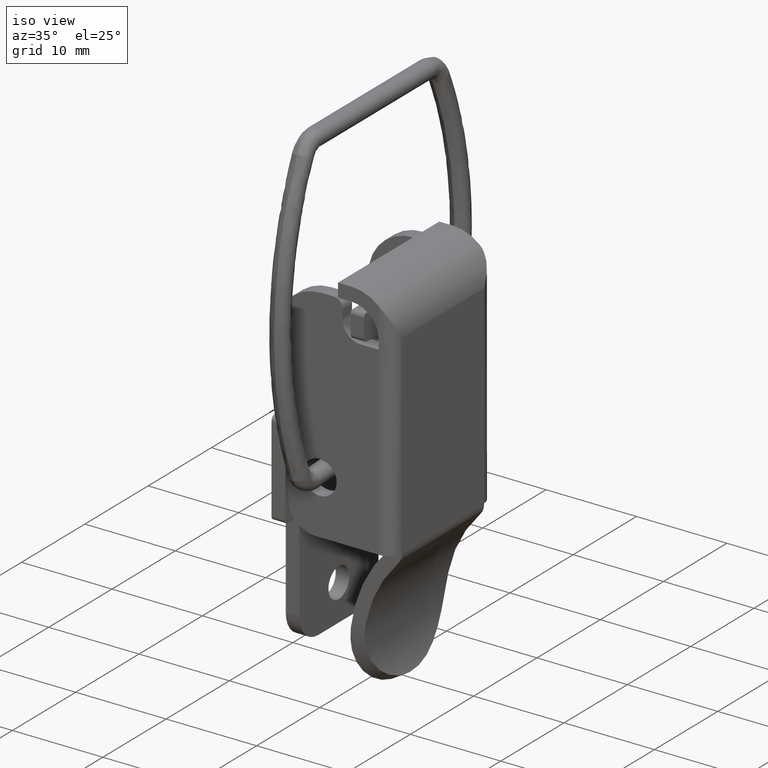
[diagram: clean part render]
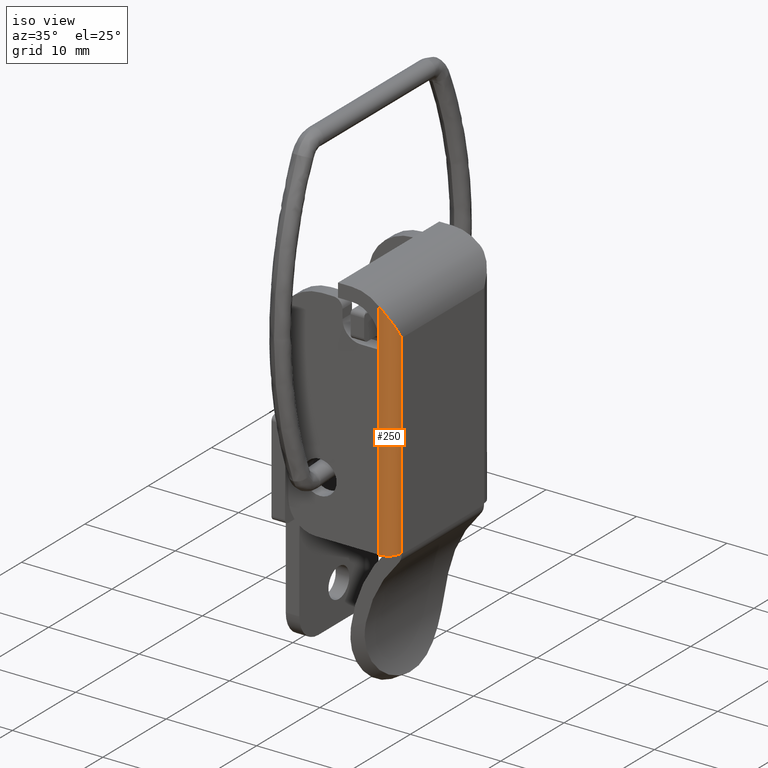
[diagram: same view with one face highlighted and labeled with its STEP entity id]
A machine part, iso view. The second image highlights one B-rep face of the part: STEP entity #250.
In plain terms, the highlighted cylindrical surface (edge-blend (fillet) strip) has radius 1.5 mm, axis along (0, 0, 1).
Its self-contained STEP definition (entity closure, byte-faithful):
#250=ADVANCED_FACE('',(#1278),#1277,.T.);
#1277=CYLINDRICAL_SURFACE('',#2055,1.50000000000E+00);
#1278=FACE_OUTER_BOUND('',#2056,.T.);
#2052=CARTESIAN_POINT('',(6.50000000000E+00,1.50000000000E+00,0.00000000000E+00));
#2053=DIRECTION('',(-0.00000000000E+00,-0.00000000000E+00,1.00000000000E+00));
#2054=DIRECTION('',(1.00000000000E+00,-0.00000000000E+00,-0.00000000000E+00));
#2055=AXIS2_PLACEMENT_3D('',#2052,#2053,#2054);
#2056=EDGE_LOOP('',(#2645,#2646,#2647,#2648,#2649,#2650));
#2645=ORIENTED_EDGE('',*,*,#2976,.F.);
#2646=ORIENTED_EDGE('',*,*,#2857,.F.);
#2647=ORIENTED_EDGE('',*,*,#2852,.F.);
#2648=ORIENTED_EDGE('',*,*,#2971,.F.);
#2649=ORIENTED_EDGE('',*,*,#2950,.T.);
#2650=ORIENTED_EDGE('',*,*,#2966,.F.);
#2852=EDGE_CURVE('',#4072,#4080,#4081,.T.);
#2857=EDGE_CURVE('',#4080,#4114,#4115,.T.);
#2950=EDGE_CURVE('',#4735,#4703,#4736,.T.);
#2966=EDGE_CURVE('',#4834,#4703,#4841,.T.);
#2971=EDGE_CURVE('',#4735,#4072,#4874,.T.);
#2976=EDGE_CURVE('',#4114,#4834,#4907,.T.);
#4072=VERTEX_POINT('',#5613);
#4080=VERTEX_POINT('',#5619);
#4081=(BOUNDED_CURVE() B_SPLINE_CURVE(3,(#5620,#5621,#5622,#5623,#5624,#5625,#5626,#5627,#5628,#5629,#5630,#5631),.UNSPECIFIED.,.F.,.F.) B_SPLINE_CURVE_WITH_KNOTS((4,2,2,2,2,4),(7.17147679171E-20,5.15321567823E-04,1.03064313565E-03,2.06128627129E-03,3.09192940694E-03,4.12257254258E-03),.UNSPECIFIED.) CURVE() GEOMETRIC_REPRESENTATION_ITEM() RATIONAL_B_SPLINE_CURVE((1.00000000000E+00,1.00000000000E+00,1.00000000000E+00,1.00000000000E+00,1.00000000000E+00,1.00000000000E+00,1.00000000000E+00,1.00000000000E+00,1.00000000000E+00,1.00000000000E+00,1.00000000000E+00,1.00000000000E+00)) REPRESENTATION_ITEM('') );
#4114=VERTEX_POINT('',#5657);
#4115=LINE('',#5658,#5659);
#4703=VERTEX_POINT('',#6097);
#4735=VERTEX_POINT('',#6116);
#4736=LINE('',#6117,#6118);
#4834=VERTEX_POINT('',#6172);
#4841=LINE('',#6176,#6177);
#4874=LINE('',#6198,#6199);
#4907=CIRCLE('',#6222,1.50000000000E+00);
#5613=CARTESIAN_POINT('',(6.50000000000E+00,0.00000000000E+00,1.88541019662E+01));
#5619=CARTESIAN_POINT('',(8.00000000000E+00,1.50000000000E+00,1.55000000000E+01));
#5620=CARTESIAN_POINT('',(6.50000000000E+00,0.00000000000E+00,1.88541019662E+01));
#5621=CARTESIAN_POINT('',(6.62943766764E+00,0.00000000000E+00,1.87383293968E+01));
#5622=CARTESIAN_POINT('',(6.75008486497E+00,1.64357694933E-02,1.86170089949E+01));
#5623=CARTESIAN_POINT('',(6.97560661925E+00,7.26585519032E-02,1.83633817999E+01));
#5624=CARTESIAN_POINT('',(7.08081155720E+00,1.12926329430E-01,1.82303645293E+01));
#5625=CARTESIAN_POINT('',(7.36571312913E+00,2.56696936258E-01,1.78269442379E+01));
#5626=CARTESIAN_POINT('',(7.51931379178E+00,3.83437061872E-01,1.75477735651E+01));
#5627=CARTESIAN_POINT('',(7.76440905076E+00,6.71155531311E-01,1.69707397386E+01));
#5628=CARTESIAN_POINT('',(7.85244227595E+00,8.28270796595E-01,1.66812697471E+01));
#5629=CARTESIAN_POINT('',(7.97035815395E+00,1.15595475357E+00,1.60958606854E+01));
#5630=CARTESIAN_POINT('',(8.00000000000E+00,1.32822625141E+00,1.57975213558E+01));
#5631=CARTESIAN_POINT('',(8.00000000000E+00,1.50000000000E+00,1.55000000000E+01));
#5657=CARTESIAN_POINT('',(8.00000000000E+00,1.50000000000E+00,-6.00000000000E+00));
#5658=CARTESIAN_POINT('',(8.00000000000E+00,1.50000000000E+00,1.55000000000E+01));
#5659=VECTOR('',#5660,2.15000000000E+01);
#5660=DIRECTION('',(0.00000000000E+00,0.00000000000E+00,-1.00000000000E+00));
#6097=CARTESIAN_POINT('',(6.50000000000E+00,0.00000000000E+00,1.45005869984E+01));
#6116=CARTESIAN_POINT('',(6.50000000000E+00,0.00000000000E+00,1.55000000000E+01));
#6117=CARTESIAN_POINT('',(6.50000000000E+00,0.00000000000E+00,1.55000000000E+01));
#6118=VECTOR('',#6119,9.99413001577E-01);
#6119=DIRECTION('',(0.00000000000E+00,0.00000000000E+00,-1.00000000000E+00));
#6172=CARTESIAN_POINT('',(6.50000000000E+00,0.00000000000E+00,-6.00000000000E+00));
#6176=CARTESIAN_POINT('',(6.50000000000E+00,0.00000000000E+00,-6.00000000000E+00));
#6177=VECTOR('',#6178,2.05005869984E+01);
#6178=DIRECTION('',(0.00000000000E+00,0.00000000000E+00,1.00000000000E+00));
#6198=CARTESIAN_POINT('',(6.50000000000E+00,0.00000000000E+00,1.55000000000E+01));
#6199=VECTOR('',#6200,3.35410196625E+00);
#6200=DIRECTION('',(0.00000000000E+00,0.00000000000E+00,1.00000000000E+00));
#6219=CARTESIAN_POINT('',(6.50000000000E+00,1.50000000000E+00,-6.00000000000E+00));
#6220=DIRECTION('',(0.00000000000E+00,0.00000000000E+00,-1.00000000000E+00));
#6221=DIRECTION('',(1.00000000000E+00,-0.00000000000E+00,-0.00000000000E+00));
#6222=AXIS2_PLACEMENT_3D('',#6219,#6220,#6221);